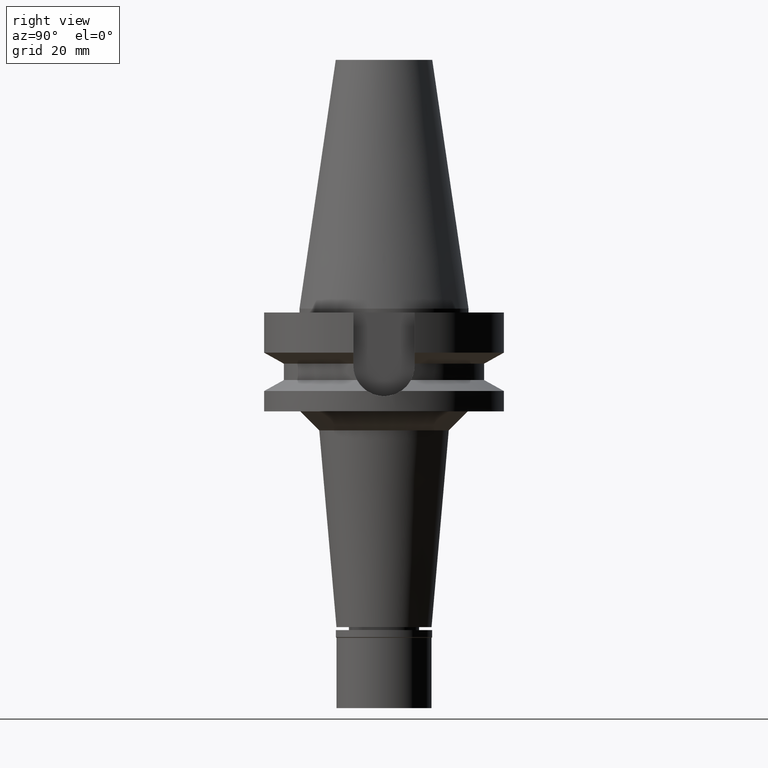
[diagram: clean part render]
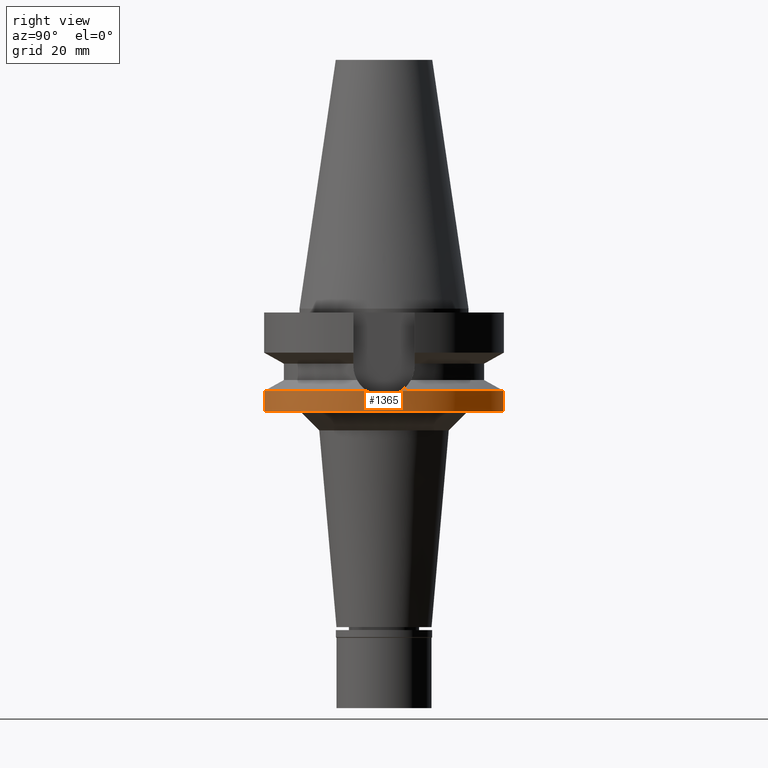
[diagram: same view with one face highlighted and labeled with its STEP entity id]
A machine part, right view. The second image highlights one B-rep face of the part: STEP entity #1365.
In plain terms, the highlighted cylindrical surface (partial cylindrical patch) has radius 31.5 mm, axis along (0, 0, -1).
Its self-contained STEP definition (entity closure, byte-faithful):
#204 = CARTESIAN_POINT ( 'NONE',  ( 0.0000000000000000000, -31.50000000000000000, -21.63449434733000132 ) ) ;
#220 = CIRCLE ( 'NONE', #1547, 31.50000000000000000 ) ;
#238 = ORIENTED_EDGE ( 'NONE', *, *, #970, .T. ) ;
#246 = CARTESIAN_POINT ( 'NONE',  ( 31.41697254242930271, 2.284015593820755363, -22.66919255135217526 ) ) ;
#309 = CARTESIAN_POINT ( 'NONE',  ( 0.0000000000000000000, 2.126109307999999799E-14, -27.00000000000000000 ) ) ;
#343 = CARTESIAN_POINT ( 'NONE',  ( 31.17899877608999759, 4.485536235554000051, -21.63449434733000132 ) ) ;
#353 = CARTESIAN_POINT ( 'NONE',  ( 0.0000000000000000000, 2.126109307999999799E-14, 73.60999999999999943 ) ) ;
#444 = VERTEX_POINT ( 'NONE', #1225 ) ;
#501 = CARTESIAN_POINT ( 'NONE',  ( 0.0000000000000000000, 0.0000000000000000000, -21.63449434733000132 ) ) ;
#570 = DIRECTION ( 'NONE',  ( 0.0000000000000000000, 1.099151708819000049E-13, -1.000000000000000000 ) ) ;
#571 = ORIENTED_EDGE ( 'NONE', *, *, #2504, .F. ) ;
#605 = CARTESIAN_POINT ( 'NONE',  ( 31.37855930987701214, -2.761990093449054218, -22.51192666837500411 ) ) ;
#618 = CARTESIAN_POINT ( 'NONE',  ( 31.38993145521997619, -2.631335983103371579, -22.55874663190619955 ) ) ;
#636 = CARTESIAN_POINT ( 'NONE',  ( 31.50000030226999570, 4.150139482353998925E-14, -23.00000138148999795 ) ) ;
#709 = CARTESIAN_POINT ( 'NONE',  ( 31.50000030226999570, 4.150139482353998925E-14, -23.00000138148999795 ) ) ;
#770 = DIRECTION ( 'NONE',  ( 0.0000000000000000000, 1.000000000000000000, 0.0000000000000000000 ) ) ;
#811 = DIRECTION ( 'NONE',  ( 0.0000000000000000000, -1.000000000000000000, 0.0000000000000000000 ) ) ;
#910 = CARTESIAN_POINT ( 'NONE',  ( 31.23205437646138805, -4.116746326772162234, -21.88196564631180152 ) ) ;
#911 = ORIENTED_EDGE ( 'NONE', *, *, #2226, .T. ) ;
#928 = VERTEX_POINT ( 'NONE', #3006 ) ;
#937 = CARTESIAN_POINT ( 'NONE',  ( 31.44587474454343123, 1.845305156543991520, -22.78628520787604472 ) ) ;
#946 = VECTOR ( 'NONE', #1926, 1000.000000000000000 ) ;
#970 = EDGE_CURVE ( 'NONE', #1684, #1721, #220, .T. ) ;
#1029 = DIRECTION ( 'NONE',  ( 0.0000000000000000000, 0.0000000000000000000, 1.000000000000000000 ) ) ;
#1051 = AXIS2_PLACEMENT_3D ( 'NONE', #353, #1993, #3046 ) ;
#1088 = CARTESIAN_POINT ( 'NONE',  ( 31.40205153632066271, -2.481143929224092659, -22.60832449609318218 ) ) ;
#1094 = DIRECTION ( 'NONE',  ( 0.0000000000000000000, 0.0000000000000000000, -1.000000000000000000 ) ) ;
#1126 = CARTESIAN_POINT ( 'NONE',  ( 31.50000030226999925, -0.7652255575721648162, -23.00000000000000000 ) ) ;
#1136 = EDGE_CURVE ( 'NONE', #928, #1721, #1381, .T. ) ;
#1155 = CARTESIAN_POINT ( 'NONE',  ( 31.47113575803165730, -1.554964651850658353, -22.89006402801799211 ) ) ;
#1212 = CIRCLE ( 'NONE', #2931, 31.50000000000000000 ) ;
#1225 = CARTESIAN_POINT ( 'NONE',  ( 0.0000000000000000000, -31.50000000000000000, -27.00000000000000000 ) ) ;
#1239 = DIRECTION ( 'NONE',  ( 0.0000000000000000000, 0.0000000000000000000, -1.000000000000000000 ) ) ;
#1319 = FACE_OUTER_BOUND ( 'NONE', #1749, .T. ) ;
#1323 = CARTESIAN_POINT ( 'NONE',  ( 31.35450367999159127, -3.025551444394471989, -22.41216023106509425 ) ) ;
#1358 = CARTESIAN_POINT ( 'NONE',  ( 31.27811616776916281, -3.746663410095390834, -22.08609477296984025 ) ) ;
#1365 = ADVANCED_FACE ( 'NONE', ( #1319 ), #2548, .T. ) ;
#1381 = B_SPLINE_CURVE_WITH_KNOTS ( 'NONE', 3,
 ( #709, #1430, #2426, #1494, #1698, #937, #1909, #1667, #2215, #246, #2882, #2675, #1941, #2408, #2184 ),
 .UNSPECIFIED., .F., .F.,
 ( 4, 2, 2, 1, 1, 1, 2, 2, 4 ),
 ( 0.0000000000000000000, 0.2500000000000022204, 0.3750000000000032752, 0.4375000000000036637, 0.4687500000000037192, 0.4843750000000038858, 0.4921875000000038303, 0.5000000000000036637, 1.000000000000000000 ),
 .UNSPECIFIED. ) ;
#1419 = VERTEX_POINT ( 'NONE', #1491 ) ;
#1430 = CARTESIAN_POINT ( 'NONE',  ( 31.50000030227001346, 0.3826090918744618485, -23.00000000000000000 ) ) ;
#1475 = VERTEX_POINT ( 'NONE', #1510 ) ;
#1491 = CARTESIAN_POINT ( 'NONE',  ( 31.17899877608999759, -4.485536235554000051, -21.63449434733000132 ) ) ;
#1494 = CARTESIAN_POINT ( 'NONE',  ( 31.47113333814916558, 1.356640495981120020, -22.88731189947309730 ) ) ;
#1510 = CARTESIAN_POINT ( 'NONE',  ( 0.0000000000000000000, 31.50000000000000000, -27.00000000000000000 ) ) ;
#1542 = VERTEX_POINT ( 'NONE', #204 ) ;
#1547 = AXIS2_PLACEMENT_3D ( 'NONE', #501, #1239, #770 ) ;
#1592 = ORIENTED_EDGE ( 'NONE', *, *, #2800, .F. ) ;
#1666 = LINE ( 'NONE', #1892, #946 ) ;
#1667 = CARTESIAN_POINT ( 'NONE',  ( 31.42563404118526549, 2.162357063322922546, -22.70443063266573347 ) ) ;
#1684 = VERTEX_POINT ( 'NONE', #2328 ) ;
#1698 = CARTESIAN_POINT ( 'NONE',  ( 31.46211241186140484, 1.552211430835110706, -22.85146869852459872 ) ) ;
#1721 = VERTEX_POINT ( 'NONE', #343 ) ;
#1749 = EDGE_LOOP ( 'NONE', ( #2052, #2957, #911, #1592, #238, #2102, #571 ) ) ;
#1892 = CARTESIAN_POINT ( 'NONE',  ( 0.0000000000000000000, -31.50000000000000000, -21.63449434733000132 ) ) ;
#1909 = CARTESIAN_POINT ( 'NONE',  ( 31.43707934141286131, 1.991785373851441276, -22.75083979994500183 ) ) ;
#1926 = DIRECTION ( 'NONE',  ( 0.0000000000000000000, -1.105773104655000034E-13, -1.000000000000000000 ) ) ;
#1941 = CARTESIAN_POINT ( 'NONE',  ( 31.36324472114687012, 3.008186403774371076, -22.45010119731899678 ) ) ;
#1946 = EDGE_CURVE ( 'NONE', #1419, #1542, #2374, .T. ) ;
#1985 = B_SPLINE_CURVE_WITH_KNOTS ( 'NONE', 3,
 ( #2089, #910, #1358, #2801, #1323, #605, #618, #1088, #2815, #3030, #2835, #3051, #1155, #1126, #636 ),
 .UNSPECIFIED., .F., .F.,
 ( 4, 2, 2, 1, 1, 1, 2, 2, 4 ),
 ( 0.0000000000000000000, 0.2499999999999968914, 0.3749999999999954481, 0.4374999999999949485, 0.4687499999999946709, 0.4843749999999942824, 0.4921874999999941713, 0.4999999999999940048, 1.000000000000000000 ),
 .UNSPECIFIED. ) ;
#1993 = DIRECTION ( 'NONE',  ( 0.0000000000000000000, 0.0000000000000000000, -1.000000000000000000 ) ) ;
#1995 = CARTESIAN_POINT ( 'NONE',  ( 0.0000000000000000000, 31.50000000000000000, -21.63449434733000132 ) ) ;
#2052 = ORIENTED_EDGE ( 'NONE', *, *, #1946, .T. ) ;
#2089 = CARTESIAN_POINT ( 'NONE',  ( 31.17899877608999759, -4.485536235554000051, -21.63449434733000132 ) ) ;
#2102 = ORIENTED_EDGE ( 'NONE', *, *, #1136, .F. ) ;
#2184 = CARTESIAN_POINT ( 'NONE',  ( 31.17899877608999759, 4.485536235554000051, -21.63449434733000132 ) ) ;
#2215 = CARTESIAN_POINT ( 'NONE',  ( 31.41961539192765329, 2.247536052731850198, -22.67995511559495014 ) ) ;
#2226 = EDGE_CURVE ( 'NONE', #444, #1475, #1212, .T. ) ;
#2275 = AXIS2_PLACEMENT_3D ( 'NONE', #2307, #1094, #3036 ) ;
#2307 = CARTESIAN_POINT ( 'NONE',  ( 0.0000000000000000000, 0.0000000000000000000, -21.63449434733000132 ) ) ;
#2328 = CARTESIAN_POINT ( 'NONE',  ( 0.0000000000000000000, 31.50000000000000000, -21.63449434733000132 ) ) ;
#2374 = CIRCLE ( 'NONE', #2275, 31.50000000000001421 ) ;
#2408 = CARTESIAN_POINT ( 'NONE',  ( 31.28511117654104368, 3.747948078862596955, -22.12944254114498577 ) ) ;
#2426 = CARTESIAN_POINT ( 'NONE',  ( 31.49278356123978639, 0.7711873036931051750, -22.97267690001503126 ) ) ;
#2504 = EDGE_CURVE ( 'NONE', #1419, #928, #1985, .T. ) ;
#2548 = CYLINDRICAL_SURFACE ( 'NONE', #1051, 31.50000000000000000 ) ;
#2675 = CARTESIAN_POINT ( 'NONE',  ( 31.41418307691938594, 2.322078179474600379, -22.65782554032587370 ) ) ;
#2745 = LINE ( 'NONE', #1995, #3092 ) ;
#2800 = EDGE_CURVE ( 'NONE', #1684, #1475, #2745, .T. ) ;
#2801 = CARTESIAN_POINT ( 'NONE',  ( 31.33671814113539611, -3.204274407590857354, -22.33747821317917825 ) ) ;
#2815 = CARTESIAN_POINT ( 'NONE',  ( 31.40782472142112525, -2.406637570805186588, -22.63189169567860759 ) ) ;
#2835 = CARTESIAN_POINT ( 'NONE',  ( 31.41183231690602184, -2.353663757154063507, -22.64823938059670283 ) ) ;
#2882 = CARTESIAN_POINT ( 'NONE',  ( 31.41519654756638857, 2.308329250117757248, -22.66195675238899199 ) ) ;
#2931 = AXIS2_PLACEMENT_3D ( 'NONE', #309, #1029, #811 ) ;
#2957 = ORIENTED_EDGE ( 'NONE', *, *, #3083, .T. ) ;
#3006 = CARTESIAN_POINT ( 'NONE',  ( 31.50000030226999570, 4.150139482353998925E-14, -23.00000138148999795 ) ) ;
#3030 = CARTESIAN_POINT ( 'NONE',  ( 31.41023747458205406, -2.374835805099700714, -22.64173436498732883 ) ) ;
#3036 = DIRECTION ( 'NONE',  ( 0.9898094849552905306, -0.1423979757318985240, 0.0000000000000000000 ) ) ;
#3046 = DIRECTION ( 'NONE',  ( 0.0000000000000000000, -1.000000000000000000, 0.0000000000000000000 ) ) ;
#3051 = CARTESIAN_POINT ( 'NONE',  ( 31.41250465254752555, -2.344685119766516834, -22.65098129005198757 ) ) ;
#3083 = EDGE_CURVE ( 'NONE', #1542, #444, #1666, .T. ) ;
#3092 = VECTOR ( 'NONE', #570, 1000.000000000000000 ) ;